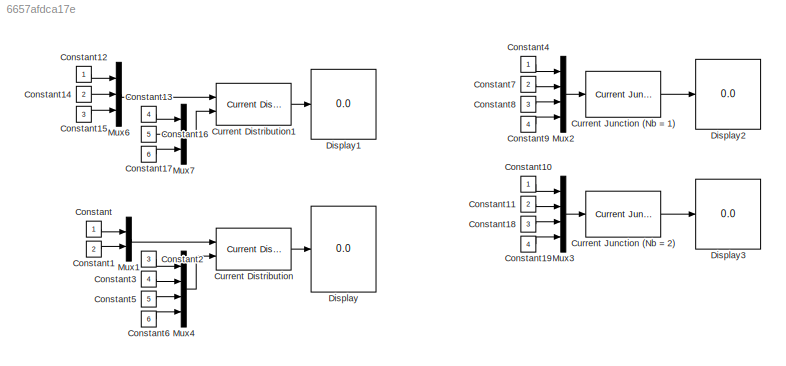
MODEL slx_6657afdca17e
KIND model
CONFIG AbsTol = auto
CONFIG EnableMultiTasking = off
CONFIG FixedStep = auto
CONFIG MaxStep = auto
CONFIG MinStep = auto
CONFIG RelTol = 1e-3
CONFIG SampleTimeConstraint = Unconstrained
CONFIG SolverName = VariableStepAuto
CONFIG StartTime = 0.0
CONFIG StopTime = 10.0
BLOCK [Constant] Constant
BLOCK [Constant] Constant1
  Value = 2
BLOCK [Constant] Constant10
BLOCK [Constant] Constant11
  Value = 2
BLOCK [Constant] Constant12
  NameLocation = left
BLOCK [Constant] Constant13
  Value = 4
BLOCK [Constant] Constant14
  Value = 2
BLOCK [Constant] Constant15
  Value = 3
BLOCK [Constant] Constant16
  Value = 5
BLOCK [Constant] Constant17
  Value = 6
BLOCK [Constant] Constant18
  Value = 3
BLOCK [Constant] Constant19
  Value = 4
BLOCK [Constant] Constant2
  Value = 3
BLOCK [Constant] Constant3
  Value = 4
BLOCK [Constant] Constant4
BLOCK [Constant] Constant5
  Value = 5
BLOCK [Constant] Constant6
  Value = 6
BLOCK [Constant] Constant7
  Value = 2
BLOCK [Constant] Constant8
  Value = 3
BLOCK [Constant] Constant9
  Value = 4
BLOCK [Reference] Current Distribution  REF=Lib_EMTAT/Components/Power Flow/Current Distribution
  AttributesFormatString = Current Distribution
  Ports = [2, 1]
  SourceBlock = Lib_EMTAT/Components/Power Flow/Current Distribution
  SourceProductName = EMTAT
  SourceType = Current Distribution
BLOCK [Reference] Current Distribution1  REF=Lib_EMTAT/Components/Power Flow/Current Distribution
  AttributesFormatString = Current Distribution
  Ports = [2, 1]
  SourceBlock = Lib_EMTAT/Components/Power Flow/Current Distribution
  SourceProductName = EMTAT
  SourceType = Current Distribution
BLOCK [Reference] Current Junction (Nb = 1)  REF=Lib_EMTAT/Components/Power Flow/Current Junction
  AttributesFormatString = Current Junction
  Ports = [1, 1]
  SourceBlock = Lib_EMTAT/Components/Power Flow/Current Junction
  SourceProductName = EMTAT
  SourceType = Current Junction
BLOCK [Reference] Current Junction (Nb = 2)  REF=Lib_EMTAT/Components/Power Flow/Current Junction
  AttributesFormatString = Current Junction
  Ports = [1, 1]
  SourceBlock = Lib_EMTAT/Components/Power Flow/Current Junction
  SourceProductName = EMTAT
  SourceType = Current Junction
BLOCK [Display] Display
  Decimation = 1
  Ports = [1]
BLOCK [Display] Display1
  Decimation = 1
  Ports = [1]
BLOCK [Display] Display2
  Decimation = 1
  Ports = [1]
BLOCK [Display] Display3
  Decimation = 1
  Ports = [1]
BLOCK [Mux] Mux1
  DisplayOption = bar
  Inputs = 2
  Ports = [2, 1]
BLOCK [Mux] Mux2
  DisplayOption = bar
  Ports = [4, 1]
BLOCK [Mux] Mux3
  DisplayOption = bar
  Ports = [4, 1]
BLOCK [Mux] Mux4
  DisplayOption = bar
  Ports = [4, 1]
BLOCK [Mux] Mux6
  DisplayOption = bar
  Inputs = 3
  Ports = [3, 1]
BLOCK [Mux] Mux7
  DisplayOption = bar
  Inputs = 3
  Ports = [3, 1]
LINE Constant10:1 -> Mux3:1
LINE Constant11:1 -> Mux3:2
LINE Constant12:1 -> Mux6:1
LINE Constant13:1 -> Mux7:1
LINE Constant14:1 -> Mux6:2
LINE Constant15:1 -> Mux6:3
LINE Constant16:1 -> Mux7:2
LINE Constant17:1 -> Mux7:3
LINE Constant18:1 -> Mux3:3
LINE Constant19:1 -> Mux3:4
LINE Constant1:1 -> Mux1:2
LINE Constant2:1 -> Mux4:1
LINE Constant3:1 -> Mux4:2
LINE Constant4:1 -> Mux2:1
LINE Constant5:1 -> Mux4:3
LINE Constant6:1 -> Mux4:4
LINE Constant7:1 -> Mux2:2
LINE Constant8:1 -> Mux2:3
LINE Constant9:1 -> Mux2:4
LINE Constant:1 -> Mux1:1
LINE Current Distribution1:1 -> Display1:1
LINE Current Distribution:1 -> Display:1
LINE Current Junction (Nb = 1):1 -> Display2:1
LINE Current Junction (Nb = 2):1 -> Display3:1
LINE Mux1:1 -> Current Distribution:1
LINE Mux2:1 -> Current Junction (Nb = 1):1
LINE Mux3:1 -> Current Junction (Nb = 2):1
LINE Mux4:1 -> Current Distribution:2
LINE Mux6:1 -> Current Distribution1:1
LINE Mux7:1 -> Current Distribution1:2
